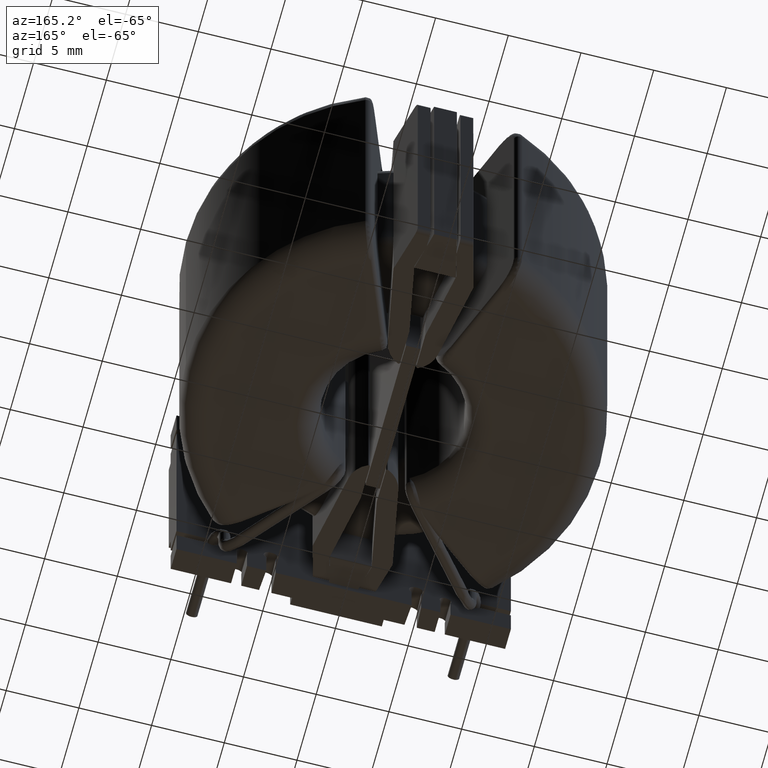
[diagram: clean part render]
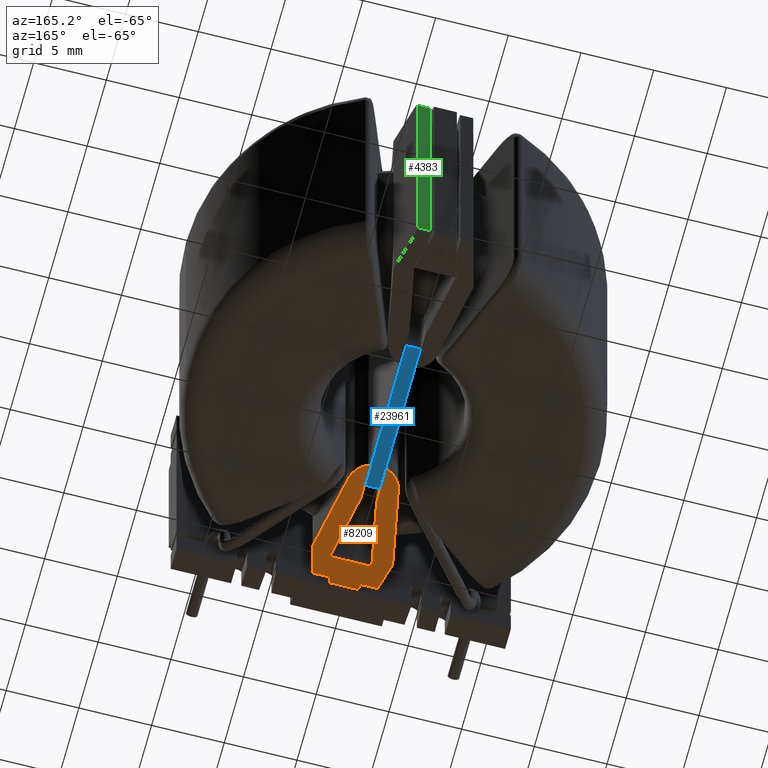
[diagram: same view with three faces highlighted in distinct colors, each labeled with its STEP entity id]
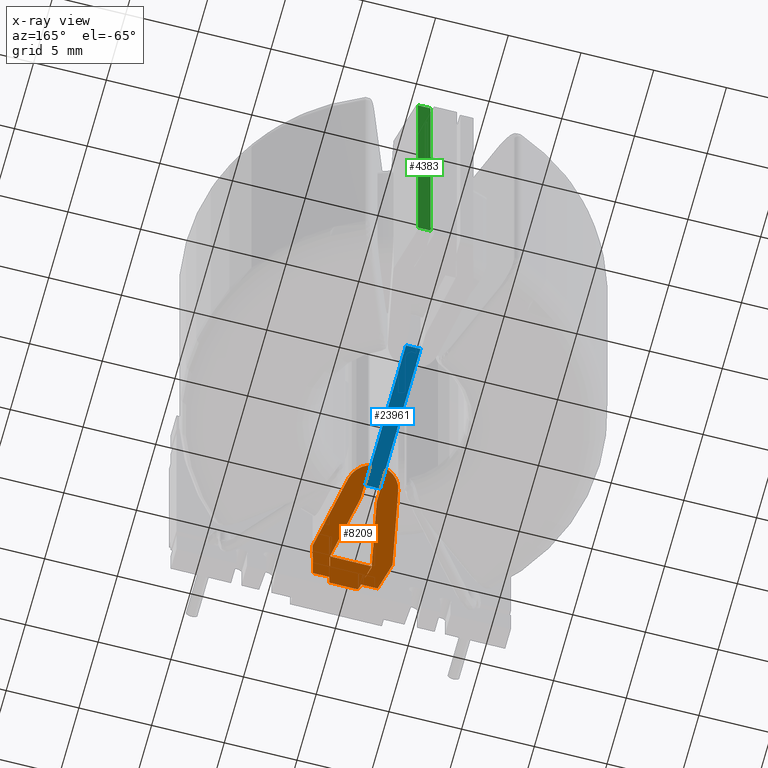
[diagram: x-ray of the same camera — body ghosted, the three highlighted faces saturated]
A machine part, auxiliary view with three faces highlighted in distinct colors.
The next image is the same camera in x-ray (body ghosted, the three faces saturated) — at least one of them is partly hidden behind the body in this view.
Their STEP definitions:

[orange] entity #8209 — the highlighted planar face has unit normal (-0, -0, 1).
#35 = VECTOR ( 'NONE', #3543, 1000.000000000000000 ) ;
#349 = LINE ( 'NONE', #7281, #35 ) ;
#360 = ORIENTED_EDGE ( 'NONE', *, *, #5652, .F. ) ;
#470 = ORIENTED_EDGE ( 'NONE', *, *, #2451, .T. ) ;
#953 = DIRECTION ( 'NONE',  ( 1.734723475976810250E-14, 1.000000000000000000, 0.0000000000000000000 ) ) ;
#1434 = CARTESIAN_POINT ( 'NONE',  ( -1.085306122448975952, -12.45000000000000107, -10.01999999999999780 ) ) ;
#1566 = EDGE_CURVE ( 'NONE', #17044, #23680, #14290, .T. ) ;
#1624 = DIRECTION ( 'NONE',  ( -0.1884474237582198508, -0.9820832798082298476, -1.731160121693574735E-18 ) ) ;
#1858 = VERTEX_POINT ( 'NONE', #13971 ) ;
#2071 = CARTESIAN_POINT ( 'NONE',  ( -0.6500000000000014655, -3.854749683773304181, -10.01999999999999780 ) ) ;
#2239 = CARTESIAN_POINT ( 'NONE',  ( -1.450000000000000400, -11.04070556041077111, -10.01999999999999780 ) ) ;
#2451 = EDGE_CURVE ( 'NONE', #20481, #26420, #20161, .T. ) ;
#2576 = VECTOR ( 'NONE', #13569, 999.9999999999998863 ) ;
#2624 = ORIENTED_EDGE ( 'NONE', *, *, #22571, .F. ) ;
#2752 = EDGE_CURVE ( 'NONE', #7053, #13547, #19780, .T. ) ;
#3372 = VECTOR ( 'NONE', #10212, 1000.000000000000000 ) ;
#3392 = ORIENTED_EDGE ( 'NONE', *, *, #20004, .F. ) ;
#3543 = DIRECTION ( 'NONE',  ( 1.000000000000000000, -0.0000000000000000000, -0.0000000000000000000 ) ) ;
#3743 = CIRCLE ( 'NONE', #22358, 0.09999999999999982514 ) ;
#4137 = ORIENTED_EDGE ( 'NONE', *, *, #10246, .F. ) ;
#4238 = CARTESIAN_POINT ( 'NONE',  ( 2.124710338101236218, -12.84999999999999964, -10.01999999999999780 ) ) ;
#4276 = VERTEX_POINT ( 'NONE', #23663 ) ;
#4286 = CARTESIAN_POINT ( 'NONE',  ( -9.413653881361080418E-16, -5.471324772583614937, -10.01999999999999780 ) ) ;
#4506 = ORIENTED_EDGE ( 'NONE', *, *, #15605, .T. ) ;
#4784 = VECTOR ( 'NONE', #7999, 1000.000000000000114 ) ;
#4900 = ORIENTED_EDGE ( 'NONE', *, *, #7692, .T. ) ;
#4982 = CARTESIAN_POINT ( 'NONE',  ( 1.195398654299247854, -11.99089071824145236, -10.01999999999999957 ) ) ;
#5210 = CARTESIAN_POINT ( 'NONE',  ( -0.6500000000000013545, -3.954749683773304270, -10.01999999999999780 ) ) ;
#5283 = VECTOR ( 'NONE', #14437, 1000.000000000000000 ) ;
#5399 = ORIENTED_EDGE ( 'NONE', *, *, #21020, .F. ) ;
#5652 = EDGE_CURVE ( 'NONE', #1858, #15328, #10882, .T. ) ;
#5857 = LINE ( 'NONE', #21688, #26925 ) ;
#5874 = DIRECTION ( 'NONE',  ( -0.2331853010277130100, 0.9724323191793941001, -0.0000000000000000000 ) ) ;
#6033 = ORIENTED_EDGE ( 'NONE', *, *, #24390, .F. ) ;
#6051 = LINE ( 'NONE', #8640, #11626 ) ;
#6078 = PLANE ( 'NONE',  #19697 ) ;
#6244 = VERTEX_POINT ( 'NONE', #19814 ) ;
#6257 = CARTESIAN_POINT ( 'NONE',  ( -1.450000000000000400, -11.04070556041077111, -10.01999999999999780 ) ) ;
#6282 = ORIENTED_EDGE ( 'NONE', *, *, #13342, .F. ) ;
#6692 = VECTOR ( 'NONE', #5874, 999.9999999999998863 ) ;
#7036 = LINE ( 'NONE', #6257, #19148 ) ;
#7053 = VERTEX_POINT ( 'NONE', #2071 ) ;
#7064 = VECTOR ( 'NONE', #18632, 1000.000000000000114 ) ;
#7281 = CARTESIAN_POINT ( 'NONE',  ( -1.444999999999999174, -10.98000000000000043, -10.01999999999999957 ) ) ;
#7432 = LINE ( 'NONE', #20600, #4784 ) ;
#7692 = EDGE_CURVE ( 'NONE', #1858, #19245, #23727, .T. ) ;
#7707 = DIRECTION ( 'NONE',  ( 0.2588190451025220162, -0.9659258262890678681, 2.377624488998901290E-18 ) ) ;
#7781 = AXIS2_PLACEMENT_3D ( 'NONE', #17422, #15245, #953 ) ;
#7873 = LINE ( 'NONE', #8836, #9854 ) ;
#7999 = DIRECTION ( 'NONE',  ( 0.1884474237582204337, -0.9820832798082297366, 1.731160121693579935E-18 ) ) ;
#8057 = VERTEX_POINT ( 'NONE', #15798 ) ;
#8209 = ADVANCED_FACE ( 'NONE', ( #22684 ), #6078, .F. ) ;
#8412 = EDGE_CURVE ( 'NONE', #6244, #8752, #21665, .T. ) ;
#8492 = DIRECTION ( 'NONE',  ( 1.131121966037178609E-16, -1.000000000000000000, 7.841231014475304878E-34 ) ) ;
#8581 = ORIENTED_EDGE ( 'NONE', *, *, #2752, .T. ) ;
#8635 = DIRECTION ( 'NONE',  ( -9.186435596565499845E-18, 1.848892746611746966E-32, 1.000000000000000000 ) ) ;
#8640 = CARTESIAN_POINT ( 'NONE',  ( -0.5500000000000010436, -6.350405559486238971, -10.01999999999999780 ) ) ;
#8752 = VERTEX_POINT ( 'NONE', #20057 ) ;
#8836 = CARTESIAN_POINT ( 'NONE',  ( 1.445000000000006279, -10.94999999999999751, -10.01999999999999957 ) ) ;
#8976 = LINE ( 'NONE', #24484, #25140 ) ;
#9046 = VERTEX_POINT ( 'NONE', #4982 ) ;
#9382 = CARTESIAN_POINT ( 'NONE',  ( -0.9749999999999960920, -12.91000000000000014, -10.01999999999999957 ) ) ;
#9456 = DIRECTION ( 'NONE',  ( -1.000000000000000000, -2.775557561562891351E-17, -9.186435596565504467E-18 ) ) ;
#9854 = VECTOR ( 'NONE', #17357, 1000.000000000000114 ) ;
#9929 = CARTESIAN_POINT ( 'NONE',  ( -1.195398654299207886, -11.99089071824158914, -10.01999999999999957 ) ) ;
#9989 = VERTEX_POINT ( 'NONE', #11587 ) ;
#10065 = CARTESIAN_POINT ( 'NONE',  ( 0.0000000000000000000, -12.84999999999999964, -10.01999999999999957 ) ) ;
#10159 = AXIS2_PLACEMENT_3D ( 'NONE', #4286, #10238, #24960 ) ;
#10212 = DIRECTION ( 'NONE',  ( -1.000000000000000000, 0.0000000000000000000, 0.0000000000000000000 ) ) ;
#10238 = DIRECTION ( 'NONE',  ( -9.186435596565499845E-18, 1.848892746611746966E-32, 1.000000000000000000 ) ) ;
#10239 = ORIENTED_EDGE ( 'NONE', *, *, #17493, .T. ) ;
#10246 = EDGE_CURVE ( 'NONE', #17478, #10898, #7036, .T. ) ;
#10391 = EDGE_LOOP ( 'NONE', ( #3392, #22880, #25439, #10239, #15598, #15917, #22128, #15763, #18614, #6282, #5399, #360, #4900, #18173, #20759, #470, #4506, #14699, #14623, #2624, #25369, #8581, #6033, #4137 ) ) ;
#10844 = DIRECTION ( 'NONE',  ( -1.131121966037178609E-16, 1.000000000000000000, -7.841231014475304878E-34 ) ) ;
#10870 = AXIS2_PLACEMENT_3D ( 'NONE', #5210, #17888, #26435 ) ;
#10882 = LINE ( 'NONE', #4238, #27022 ) ;
#10898 = VERTEX_POINT ( 'NONE', #20945 ) ;
#11029 = DIRECTION ( 'NONE',  ( 3.252606517456518824E-15, 1.000000000000000000, 0.0000000000000000000 ) ) ;
#11155 = EDGE_CURVE ( 'NONE', #4276, #9046, #19095, .T. ) ;
#11201 = DIRECTION ( 'NONE',  ( 9.186435596565499845E-18, -1.848892746611746966E-32, -1.000000000000000000 ) ) ;
#11241 = EDGE_CURVE ( 'NONE', #24468, #20481, #13171, .T. ) ;
#11587 = CARTESIAN_POINT ( 'NONE',  ( -1.718645739664404148, -5.141541781006729650, -10.01999999999999780 ) ) ;
#11626 = VECTOR ( 'NONE', #10844, 1000.000000000000000 ) ;
#11628 = CARTESIAN_POINT ( 'NONE',  ( 1.437806122448984869, -10.98000000000000043, -10.02000000000000135 ) ) ;
#12036 = VECTOR ( 'NONE', #25928, 1000.000000000000114 ) ;
#12108 = CARTESIAN_POINT ( 'NONE',  ( 2.750000000000000000, -10.51638721234626317, -10.01999999999999780 ) ) ;
#12210 = VERTEX_POINT ( 'NONE', #16280 ) ;
#12301 = VECTOR ( 'NONE', #8492, 1000.000000000000000 ) ;
#12515 = CARTESIAN_POINT ( 'NONE',  ( 0.5499999999999992673, -6.350405559486238971, -10.01999999999999780 ) ) ;
#12791 = DIRECTION ( 'NONE',  ( -0.1884474237582202116, 0.9820832798082298476, -1.731160121693577817E-18 ) ) ;
#12847 = CARTESIAN_POINT ( 'NONE',  ( 0.9893877551020444638, -12.84999999999999964, -10.01999999999999957 ) ) ;
#13171 = LINE ( 'NONE', #10065, #3372 ) ;
#13342 = EDGE_CURVE ( 'NONE', #8057, #21874, #24863, .T. ) ;
#13350 = DIRECTION ( 'NONE',  ( -0.2588190451025218497, -0.9659258262890679791, -2.377624488998899364E-18 ) ) ;
#13472 = CARTESIAN_POINT ( 'NONE',  ( -0.9749999999999960920, -12.91000000000000014, -10.01999999999999957 ) ) ;
#13547 = VERTEX_POINT ( 'NONE', #14013 ) ;
#13569 = DIRECTION ( 'NONE',  ( -0.2331853010277130100, 0.9724323191793941001, -0.0000000000000000000 ) ) ;
#13627 = CARTESIAN_POINT ( 'NONE',  ( 1.085306122448983501, -12.45000000000000107, -10.01999999999999780 ) ) ;
#13755 = VERTEX_POINT ( 'NONE', #11628 ) ;
#13971 = CARTESIAN_POINT ( 'NONE',  ( 2.231890015073686229, -12.45000000000000107, -10.01999999999999780 ) ) ;
#14013 = CARTESIAN_POINT ( 'NONE',  ( -0.5500000000000013767, -3.954749683773304270, -10.01999999999999780 ) ) ;
#14015 = CARTESIAN_POINT ( 'NONE',  ( -2.124710338101236218, -12.84999999999999964, -10.01999999999999780 ) ) ;
#14027 = LINE ( 'NONE', #13472, #2576 ) ;
#14290 = LINE ( 'NONE', #12515, #12301 ) ;
#14437 = DIRECTION ( 'NONE',  ( -1.000000000000000000, -2.775557561562891351E-17, -9.186435596565504467E-18 ) ) ;
#14462 = AXIS2_PLACEMENT_3D ( 'NONE', #17070, #8635, #23343 ) ;
#14623 = ORIENTED_EDGE ( 'NONE', *, *, #24210, .F. ) ;
#14699 = ORIENTED_EDGE ( 'NONE', *, *, #8412, .F. ) ;
#15245 = DIRECTION ( 'NONE',  ( 9.186435596565499845E-18, -1.848892746611746966E-32, -1.000000000000000000 ) ) ;
#15252 = CARTESIAN_POINT ( 'NONE',  ( 0.6499999999999990230, -3.954749683773304270, -10.01999999999999780 ) ) ;
#15328 = VERTEX_POINT ( 'NONE', #12108 ) ;
#15598 = ORIENTED_EDGE ( 'NONE', *, *, #11155, .F. ) ;
#15605 = EDGE_CURVE ( 'NONE', #26420, #8752, #5857, .T. ) ;
#15655 = EDGE_CURVE ( 'NONE', #12210, #21874, #20311, .T. ) ;
#15763 = ORIENTED_EDGE ( 'NONE', *, *, #24466, .T. ) ;
#15798 = CARTESIAN_POINT ( 'NONE',  ( 1.718645739664401484, -5.141541781006731426, -10.01999999999999780 ) ) ;
#15917 = ORIENTED_EDGE ( 'NONE', *, *, #16286, .F. ) ;
#16280 = CARTESIAN_POINT ( 'NONE',  ( 0.6499999999999989120, -3.854749683773304181, -10.01999999999999780 ) ) ;
#16286 = EDGE_CURVE ( 'NONE', #23680, #4276, #7432, .T. ) ;
#16416 = CIRCLE ( 'NONE', #7781, 0.09999999999999982514 ) ;
#16509 = VERTEX_POINT ( 'NONE', #19347 ) ;
#16796 = CARTESIAN_POINT ( 'NONE',  ( 1.445000000000006279, -10.94999999999999751, -10.01999999999999957 ) ) ;
#17044 = VERTEX_POINT ( 'NONE', #22023 ) ;
#17065 = CARTESIAN_POINT ( 'NONE',  ( -1.437806122448977764, -10.97999999999999865, -10.02000000000000135 ) ) ;
#17070 = CARTESIAN_POINT ( 'NONE',  ( -9.413653881361080418E-16, -5.471324772583614937, -10.01999999999999780 ) ) ;
#17357 = DIRECTION ( 'NONE',  ( -0.2331853010277128158, -0.9724323191793941001, 0.0000000000000000000 ) ) ;
#17397 = VERTEX_POINT ( 'NONE', #9929 ) ;
#17422 = CARTESIAN_POINT ( 'NONE',  ( -0.6500000000000013545, -3.954749683773304270, -10.01999999999999780 ) ) ;
#17478 = VERTEX_POINT ( 'NONE', #2239 ) ;
#17493 = EDGE_CURVE ( 'NONE', #13755, #9046, #23493, .T. ) ;
#17639 = LINE ( 'NONE', #25749, #12036 ) ;
#17888 = DIRECTION ( 'NONE',  ( 9.186435596565499845E-18, -1.848892746611746966E-32, -1.000000000000000000 ) ) ;
#18070 = DIRECTION ( 'NONE',  ( 0.0000000000000000000, 1.000000000000000000, 0.0000000000000000000 ) ) ;
#18105 = VECTOR ( 'NONE', #13350, 1000.000000000000000 ) ;
#18173 = ORIENTED_EDGE ( 'NONE', *, *, #18914, .T. ) ;
#18614 = ORIENTED_EDGE ( 'NONE', *, *, #15655, .T. ) ;
#18632 = DIRECTION ( 'NONE',  ( -0.2331853010277128158, -0.9724323191793941001, 0.0000000000000000000 ) ) ;
#18914 = EDGE_CURVE ( 'NONE', #19245, #24468, #7873, .T. ) ;
#18922 = CARTESIAN_POINT ( 'NONE',  ( 1.024999999999999689, -12.45000000000000107, -10.01999999999999780 ) ) ;
#18948 = EDGE_CURVE ( 'NONE', #25583, #13755, #349, .T. ) ;
#19095 = LINE ( 'NONE', #26150, #18105 ) ;
#19126 = CARTESIAN_POINT ( 'NONE',  ( 2.750000000000000000, -10.51638721234626317, -10.01999999999999780 ) ) ;
#19148 = VECTOR ( 'NONE', #25116, 1000.000000000000000 ) ;
#19245 = VERTEX_POINT ( 'NONE', #13627 ) ;
#19347 = CARTESIAN_POINT ( 'NONE',  ( -0.6893939393939407800, -3.862836042027224526, -10.01999999999999780 ) ) ;
#19697 = AXIS2_PLACEMENT_3D ( 'NONE', #25210, #26865, #20602 ) ;
#19780 = CIRCLE ( 'NONE', #10870, 0.09999999999999982514 ) ;
#19814 = CARTESIAN_POINT ( 'NONE',  ( -2.750000000000000000, -10.51638721234626317, -10.01999999999999780 ) ) ;
#20004 = EDGE_CURVE ( 'NONE', #17397, #17478, #17639, .T. ) ;
#20009 = DIRECTION ( 'NONE',  ( 9.186435596565499845E-18, -1.848892746611746966E-32, -1.000000000000000000 ) ) ;
#20057 = CARTESIAN_POINT ( 'NONE',  ( -2.231890015073686229, -12.45000000000000107, -10.01999999999999780 ) ) ;
#20161 = LINE ( 'NONE', #9382, #6692 ) ;
#20311 = CIRCLE ( 'NONE', #23030, 0.09999999999999982514 ) ;
#20342 = VECTOR ( 'NONE', #7707, 1000.000000000000114 ) ;
#20481 = VERTEX_POINT ( 'NONE', #21213 ) ;
#20600 = CARTESIAN_POINT ( 'NONE',  ( 1.449999999999999512, -11.04070556041077111, -10.01999999999999780 ) ) ;
#20602 = DIRECTION ( 'NONE',  ( -2.775557561562891351E-17, 1.000000000000000000, 0.0000000000000000000 ) ) ;
#20759 = ORIENTED_EDGE ( 'NONE', *, *, #11241, .T. ) ;
#20945 = CARTESIAN_POINT ( 'NONE',  ( -0.5500000000000010436, -6.350405559486238971, -10.01999999999999780 ) ) ;
#21020 = EDGE_CURVE ( 'NONE', #15328, #8057, #22739, .T. ) ;
#21213 = CARTESIAN_POINT ( 'NONE',  ( -0.9893877551020366923, -12.84999999999999964, -10.01999999999999957 ) ) ;
#21665 = LINE ( 'NONE', #14015, #20342 ) ;
#21688 = CARTESIAN_POINT ( 'NONE',  ( -2.124710338101236218, -12.45000000000000107, -10.01999999999999780 ) ) ;
#21874 = VERTEX_POINT ( 'NONE', #26595 ) ;
#22023 = CARTESIAN_POINT ( 'NONE',  ( 0.5499999999999989342, -3.954749683773304270, -10.01999999999999780 ) ) ;
#22128 = ORIENTED_EDGE ( 'NONE', *, *, #1566, .F. ) ;
#22358 = AXIS2_PLACEMENT_3D ( 'NONE', #15252, #11201, #11029 ) ;
#22571 = EDGE_CURVE ( 'NONE', #16509, #9989, #23944, .T. ) ;
#22684 = FACE_OUTER_BOUND ( 'NONE', #10391, .T. ) ;
#22739 = LINE ( 'NONE', #19126, #23092 ) ;
#22880 = ORIENTED_EDGE ( 'NONE', *, *, #26851, .T. ) ;
#22888 = CARTESIAN_POINT ( 'NONE',  ( 0.5499999999999992673, -6.350405559486238971, -10.01999999999999780 ) ) ;
#23030 = AXIS2_PLACEMENT_3D ( 'NONE', #24355, #20009, #18070 ) ;
#23092 = VECTOR ( 'NONE', #12791, 1000.000000000000000 ) ;
#23343 = DIRECTION ( 'NONE',  ( -2.775557561562893200E-17, 1.000000000000000000, 0.0000000000000000000 ) ) ;
#23493 = LINE ( 'NONE', #16796, #7064 ) ;
#23663 = CARTESIAN_POINT ( 'NONE',  ( 1.449999999999999512, -11.04070556041077111, -10.01999999999999780 ) ) ;
#23680 = VERTEX_POINT ( 'NONE', #22888 ) ;
#23727 = LINE ( 'NONE', #18922, #5283 ) ;
#23944 = CIRCLE ( 'NONE', #10159, 1.750000000000000666 ) ;
#24210 = EDGE_CURVE ( 'NONE', #9989, #6244, #8976, .T. ) ;
#24355 = CARTESIAN_POINT ( 'NONE',  ( 0.6499999999999990230, -3.954749683773304270, -10.01999999999999780 ) ) ;
#24390 = EDGE_CURVE ( 'NONE', #10898, #13547, #6051, .T. ) ;
#24466 = EDGE_CURVE ( 'NONE', #17044, #12210, #3743, .T. ) ;
#24468 = VERTEX_POINT ( 'NONE', #12847 ) ;
#24484 = CARTESIAN_POINT ( 'NONE',  ( -2.750000000000000000, -10.51638721234626317, -10.01999999999999780 ) ) ;
#24863 = CIRCLE ( 'NONE', #14462, 1.750000000000000222 ) ;
#24960 = DIRECTION ( 'NONE',  ( -2.775557561562892584E-17, 1.000000000000000000, 0.0000000000000000000 ) ) ;
#25116 = DIRECTION ( 'NONE',  ( 0.1884474237582201839, 0.9820832798082298476, 1.731160121693578202E-18 ) ) ;
#25140 = VECTOR ( 'NONE', #1624, 1000.000000000000227 ) ;
#25210 = CARTESIAN_POINT ( 'NONE',  ( -9.413653881361080418E-16, -5.471324772583614937, -10.01999999999999780 ) ) ;
#25369 = ORIENTED_EDGE ( 'NONE', *, *, #25642, .T. ) ;
#25439 = ORIENTED_EDGE ( 'NONE', *, *, #18948, .T. ) ;
#25583 = VERTEX_POINT ( 'NONE', #17065 ) ;
#25642 = EDGE_CURVE ( 'NONE', #16509, #7053, #16416, .T. ) ;
#25749 = CARTESIAN_POINT ( 'NONE',  ( -1.450000000000000400, -11.04070556041077111, -10.01999999999999780 ) ) ;
#25928 = DIRECTION ( 'NONE',  ( -0.2588190451025220717, 0.9659258262890678681, -2.377624488998901675E-18 ) ) ;
#26150 = CARTESIAN_POINT ( 'NONE',  ( 1.024999999999999911, -12.62682715362753605, -10.01999999999999780 ) ) ;
#26420 = VERTEX_POINT ( 'NONE', #1434 ) ;
#26435 = DIRECTION ( 'NONE',  ( 0.0000000000000000000, 1.000000000000000000, 0.0000000000000000000 ) ) ;
#26595 = CARTESIAN_POINT ( 'NONE',  ( 0.6893939393939382265, -3.862836042027224526, -10.01999999999999780 ) ) ;
#26846 = DIRECTION ( 'NONE',  ( 0.2588190451025220162, 0.9659258262890678681, 2.377624488998901290E-18 ) ) ;
#26851 = EDGE_CURVE ( 'NONE', #17397, #25583, #14027, .T. ) ;
#26865 = DIRECTION ( 'NONE',  ( -9.186435596565498304E-18, -2.549748078385787959E-34, 1.000000000000000000 ) ) ;
#26925 = VECTOR ( 'NONE', #9456, 1000.000000000000000 ) ;
#27022 = VECTOR ( 'NONE', #26846, 1000.000000000000114 ) ;

[blue] entity #23961 — the highlighted planar face has unit normal (-0, 0, 1).
#134 = VERTEX_POINT ( 'NONE', #20028 ) ;
#554 = VECTOR ( 'NONE', #22612, 1000.000000000000000 ) ;
#632 = CARTESIAN_POINT ( 'NONE',  ( -0.5000000000000012212, 12.84999999999999964, -10.01999999999999957 ) ) ;
#1201 = VERTEX_POINT ( 'NONE', #2964 ) ;
#2580 = VECTOR ( 'NONE', #6048, 1000.000000000000000 ) ;
#2830 = VECTOR ( 'NONE', #23582, 1000.000000000000000 ) ;
#2929 = LINE ( 'NONE', #10452, #2580 ) ;
#2964 = CARTESIAN_POINT ( 'NONE',  ( -0.5000000000000000000, -5.329999999999994742, -10.01999999999999780 ) ) ;
#3450 = FACE_OUTER_BOUND ( 'NONE', #26784, .T. ) ;
#4113 = PLANE ( 'NONE',  #14408 ) ;
#4196 = EDGE_CURVE ( 'NONE', #10667, #1201, #6755, .T. ) ;
#4931 = CARTESIAN_POINT ( 'NONE',  ( 0.5000000000000047740, 5.270000000000002238, -10.02000000000000135 ) ) ;
#5164 = DIRECTION ( 'NONE',  ( -1.181231938894713243E-16, 1.000000000000000000, -0.0000000000000000000 ) ) ;
#5731 = VECTOR ( 'NONE', #5164, 1000.000000000000000 ) ;
#6048 = DIRECTION ( 'NONE',  ( 1.000000000000000000, -0.0000000000000000000, -0.0000000000000000000 ) ) ;
#6755 = LINE ( 'NONE', #632, #2830 ) ;
#8322 = ORIENTED_EDGE ( 'NONE', *, *, #15879, .T. ) ;
#8914 = ORIENTED_EDGE ( 'NONE', *, *, #16282, .F. ) ;
#9947 = EDGE_CURVE ( 'NONE', #134, #21807, #23498, .T. ) ;
#10452 = CARTESIAN_POINT ( 'NONE',  ( -1.444999999999999174, 5.270000000000002238, -10.02000000000000135 ) ) ;
#10667 = VERTEX_POINT ( 'NONE', #26263 ) ;
#14319 = ORIENTED_EDGE ( 'NONE', *, *, #4196, .F. ) ;
#14408 = AXIS2_PLACEMENT_3D ( 'NONE', #23024, #14739, #16656 ) ;
#14739 = DIRECTION ( 'NONE',  ( -0.0000000000000000000, 0.0000000000000000000, 1.000000000000000000 ) ) ;
#15879 = EDGE_CURVE ( 'NONE', #10667, #21807, #2929, .T. ) ;
#16282 = EDGE_CURVE ( 'NONE', #1201, #134, #20240, .T. ) ;
#16656 = DIRECTION ( 'NONE',  ( 1.000000000000000000, 0.0000000000000000000, 0.0000000000000000000 ) ) ;
#18367 = CARTESIAN_POINT ( 'NONE',  ( -1.444999999999999174, -5.329999999999994742, -10.01999999999999780 ) ) ;
#20028 = CARTESIAN_POINT ( 'NONE',  ( 0.5000000000000008882, -5.329999999999994742, -10.01999999999999957 ) ) ;
#20240 = LINE ( 'NONE', #18367, #554 ) ;
#20802 = ORIENTED_EDGE ( 'NONE', *, *, #9947, .F. ) ;
#21807 = VERTEX_POINT ( 'NONE', #4931 ) ;
#21906 = CARTESIAN_POINT ( 'NONE',  ( 0.4999999999999990563, 12.84999999999999964, -10.01999999999999957 ) ) ;
#22612 = DIRECTION ( 'NONE',  ( 1.000000000000000000, -0.0000000000000000000, -0.0000000000000000000 ) ) ;
#23024 = CARTESIAN_POINT ( 'NONE',  ( 0.0000000000000000000, -0.03000000000000051237, -10.01999999999999957 ) ) ;
#23498 = LINE ( 'NONE', #21906, #5731 ) ;
#23582 = DIRECTION ( 'NONE',  ( 1.265605648815763995E-16, -1.000000000000000000, 0.0000000000000000000 ) ) ;
#23961 = ADVANCED_FACE ( 'NONE', ( #3450 ), #4113, .F. ) ;
#26263 = CARTESIAN_POINT ( 'NONE',  ( -0.5000000000000015543, 5.270000000000002238, -10.02000000000000135 ) ) ;
#26784 = EDGE_LOOP ( 'NONE', ( #14319, #8322, #20802, #8914 ) ) ;

[green] entity #4383 — the highlighted planar face has unit normal (-0, 1, 0).
#723 = CARTESIAN_POINT ( 'NONE',  ( 1.025000000000005684, 13.65000000000000036, -10.01999999999999780 ) ) ;
#811 = DIRECTION ( 'NONE',  ( -2.775557561562891351E-17, 1.000000000000000000, 0.0000000000000000000 ) ) ;
#2009 = EDGE_CURVE ( 'NONE', #10955, #14611, #25783, .T. ) ;
#2506 = AXIS2_PLACEMENT_3D ( 'NONE', #723, #811, #15290 ) ;
#4084 = VERTEX_POINT ( 'NONE', #8315 ) ;
#4383 = ADVANCED_FACE ( 'NONE', ( #17887 ), #26229, .T. ) ;
#4947 = ORIENTED_EDGE ( 'NONE', *, *, #20823, .T. ) ;
#5008 = LINE ( 'NONE', #18196, #26737 ) ;
#5475 = DIRECTION ( 'NONE',  ( 1.000000000000000000, 0.0000000000000000000, 0.0000000000000000000 ) ) ;
#7855 = LINE ( 'NONE', #26174, #23004 ) ;
#8315 = CARTESIAN_POINT ( 'NONE',  ( 1.910350984156323539, 13.65000000000000036, 9.619999999999999218 ) ) ;
#8327 = CARTESIAN_POINT ( 'NONE',  ( 1.910350984156343079, 13.65000000000000036, -9.619999999999999218 ) ) ;
#9949 = DIRECTION ( 'NONE',  ( -1.000000000000000000, -2.775557561562891351E-17, -9.186435596565504467E-18 ) ) ;
#10955 = VERTEX_POINT ( 'NONE', #8327 ) ;
#11870 = EDGE_CURVE ( 'NONE', #14611, #23857, #7855, .T. ) ;
#11961 = CARTESIAN_POINT ( 'NONE',  ( 1.025000000000005684, 13.65000000000000036, -9.619999999999999218 ) ) ;
#12912 = VECTOR ( 'NONE', #9949, 1000.000000000000000 ) ;
#13092 = ORIENTED_EDGE ( 'NONE', *, *, #11870, .T. ) ;
#13201 = VECTOR ( 'NONE', #5475, 1000.000000000000000 ) ;
#14611 = VERTEX_POINT ( 'NONE', #15962 ) ;
#15290 = DIRECTION ( 'NONE',  ( -1.000000000000000000, -2.775557561562891351E-17, -9.186435596565504467E-18 ) ) ;
#15752 = CARTESIAN_POINT ( 'NONE',  ( 1.024999999999993250, 13.65000000000000036, 9.619999999999999218 ) ) ;
#15962 = CARTESIAN_POINT ( 'NONE',  ( 1.025000000000004796, 13.65000000000000036, -9.619999999999999218 ) ) ;
#16899 = ORIENTED_EDGE ( 'NONE', *, *, #2009, .T. ) ;
#17887 = FACE_OUTER_BOUND ( 'NONE', #22892, .T. ) ;
#18196 = CARTESIAN_POINT ( 'NONE',  ( 1.910350984156343079, 13.65000000000000036, -10.01999999999999780 ) ) ;
#19717 = CARTESIAN_POINT ( 'NONE',  ( 1.024999999999992362, 13.65000000000000036, 9.619999999999999218 ) ) ;
#20140 = DIRECTION ( 'NONE',  ( -9.186435596565498304E-18, 1.848892746611746419E-32, 1.000000000000000000 ) ) ;
#20823 = EDGE_CURVE ( 'NONE', #23857, #4084, #25430, .T. ) ;
#22892 = EDGE_LOOP ( 'NONE', ( #23061, #16899, #13092, #4947 ) ) ;
#23004 = VECTOR ( 'NONE', #25989, 1000.000000000000000 ) ;
#23061 = ORIENTED_EDGE ( 'NONE', *, *, #24163, .F. ) ;
#23857 = VERTEX_POINT ( 'NONE', #19717 ) ;
#24163 = EDGE_CURVE ( 'NONE', #10955, #4084, #5008, .T. ) ;
#25430 = LINE ( 'NONE', #15752, #13201 ) ;
#25783 = LINE ( 'NONE', #11961, #12912 ) ;
#25989 = DIRECTION ( 'NONE',  ( -9.186435596565499845E-18, 1.848892746611746966E-32, 1.000000000000000000 ) ) ;
#26174 = CARTESIAN_POINT ( 'NONE',  ( 1.025000000000004796, 13.65000000000000036, -10.01999999999999780 ) ) ;
#26229 = PLANE ( 'NONE',  #2506 ) ;
#26737 = VECTOR ( 'NONE', #20140, 1000.000000000000000 ) ;